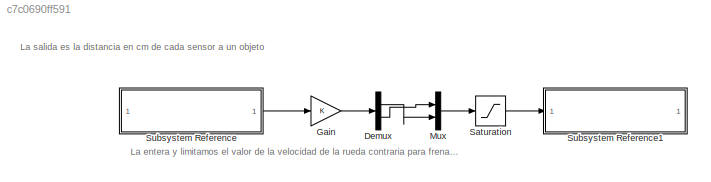
MODEL slx_c7c0690ff591
KIND model
CONFIG AbsTol = auto
CONFIG EnableMultiTasking = on
CONFIG FixedStep = auto
CONFIG MaxStep = auto
CONFIG MinStep = auto
CONFIG RelTol = 1e-3
CONFIG SampleTimeConstraint = Unconstrained
CONFIG SolverName = FixedStepAuto
CONFIG StartTime = 0.0
CONFIG StopTime = inf
BLOCK [Demux] Demux
  Outputs = 2
BLOCK [Gain] Gain
  OutDataTypeStr = int16
BLOCK [Mux] Mux
  DisplayOption = bar
  Inputs = 2
BLOCK [Saturate] Saturation
  LowerLimit = 0
  UpperLimit = 80
BLOCK [SubSystem] Subsystem Reference
  ReferencedSubsystem = SonarsDJ
BLOCK [SubSystem] Subsystem Reference1
  ReferencedSubsystem = MotorsG31
ANNOTATION (root): La entera y limitamos el valor de la velocidad de la rueda contraria para frenarla y hacer que gire al contrario
ANNOTATION (root): La salida es la distancia en cm de cada sensor a un objeto
LINE Demux:1 -> Mux:2
LINE Demux:2 -> Mux:1
LINE Gain:1 -> Demux:1
LINE Mux:1 -> Saturation:1
LINE Saturation:1 -> Subsystem Reference1:1
LINE Subsystem Reference:1 -> Gain:1
